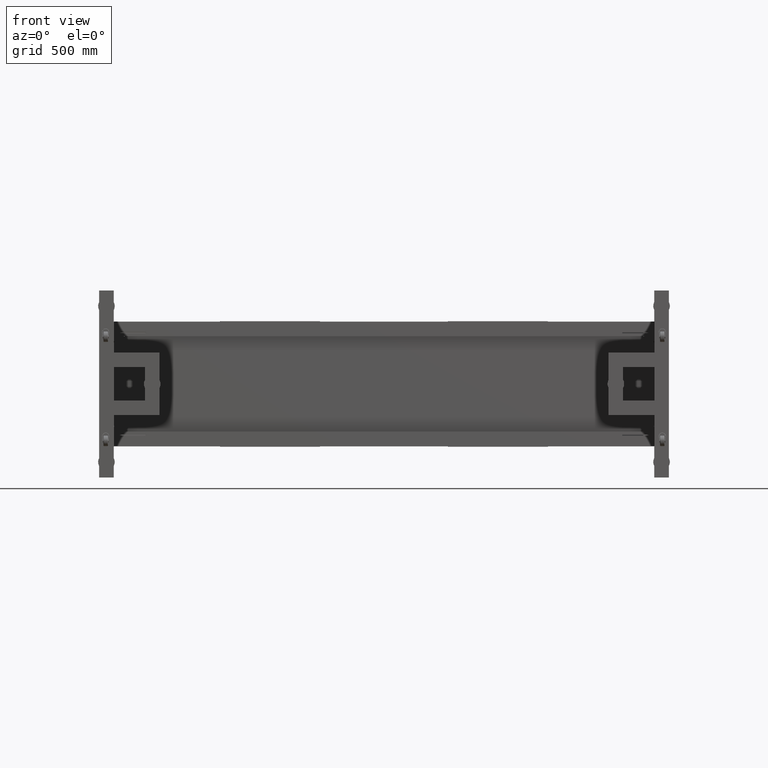
[diagram: clean part render]
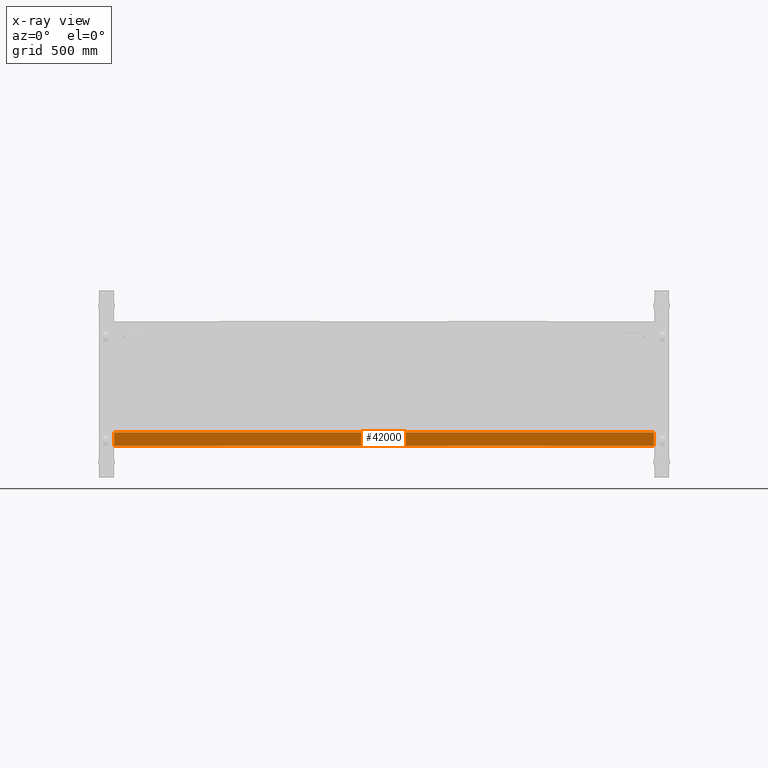
[diagram: x-ray — body ghosted, one internal face saturated and labeled with its STEP entity id]
A machine part, front view, then the same camera in x-ray: the body is ghosted and one INTERNAL B-rep face — a face not visible from any outside direction — is saturated and labeled: STEP entity #42000.
In plain terms, the highlighted planar face has unit normal (0, -1, -0).
Its self-contained STEP definition (entity closure, byte-faithful):
#6306 = LINE ( 'NONE', #54964, #43538 ) ;
#7121 = CARTESIAN_POINT ( 'NONE',  ( 1329.827512562815855, 554.4410804020126307, -232.4999999999999147 ) ) ;
#7389 = CARTESIAN_POINT ( 'NONE',  ( 1329.827512562815855, 554.4410804020126307, -232.4999999999999147 ) ) ;
#8698 = EDGE_CURVE ( 'NONE', #47258, #10629, #56404, .T. ) ;
#10378 = EDGE_CURVE ( 'NONE', #66376, #47258, #22095, .T. ) ;
#10629 = VERTEX_POINT ( 'NONE', #45358 ) ;
#11693 = ORIENTED_EDGE ( 'NONE', *, *, #13429, .F. ) ;
#13429 = EDGE_CURVE ( 'NONE', #71993, #10629, #6306, .T. ) ;
#21586 = EDGE_LOOP ( 'NONE', ( #11693, #70147, #75969, #66720 ) ) ;
#22095 = LINE ( 'NONE', #23278, #48660 ) ;
#23278 = CARTESIAN_POINT ( 'NONE',  ( 1329.827512562815855, 554.4410804020126307, -232.4999999999999147 ) ) ;
#24282 = PLANE ( 'NONE',  #50253 ) ;
#24659 = CARTESIAN_POINT ( 'NONE',  ( 1329.827512562815855, 554.4410804020126307, -232.4999999999999147 ) ) ;
#25468 = DIRECTION ( 'NONE',  ( 2.399989573374237993E-16, -1.000000000000000000, -2.999999999999999839E-15 ) ) ;
#30276 = LINE ( 'NONE', #24659, #36317 ) ;
#30473 = CARTESIAN_POINT ( 'NONE',  ( -1266.172487437185964, 554.4410804020122896, -232.4999999999999147 ) ) ;
#36317 = VECTOR ( 'NONE', #49210, 1000.000000000000000 ) ;
#36328 = CARTESIAN_POINT ( 'NONE',  ( -1266.172487437185964, 554.4410804020122896, -232.4999999999999147 ) ) ;
#36865 = DIRECTION ( 'NONE',  ( -1.000000000000000000, -2.399989573374237993E-16, 0.000000000000000000 ) ) ;
#42000 = ADVANCED_FACE ( 'NONE', ( #68533 ), #24282, .T. ) ;
#43538 = VECTOR ( 'NONE', #36865, 1000.000000000000000 ) ;
#45358 = CARTESIAN_POINT ( 'NONE',  ( -1266.172487437185964, 554.4410804020125170, -297.4999999999999432 ) ) ;
#47258 = VERTEX_POINT ( 'NONE', #30473 ) ;
#48660 = VECTOR ( 'NONE', #77610, 1000.000000000000000 ) ;
#49210 = DIRECTION ( 'NONE',  ( -7.199968720122713773E-31, 2.999999999999999839E-15, -1.000000000000000000 ) ) ;
#50026 = DIRECTION ( 'NONE',  ( -7.199968720122713773E-31, 2.999999999999999839E-15, -1.000000000000000000 ) ) ;
#50253 = AXIS2_PLACEMENT_3D ( 'NONE', #7389, #25468, #50026 ) ;
#54964 = CARTESIAN_POINT ( 'NONE',  ( 1329.827512562815855, 554.4410804020128580, -297.4999999999999432 ) ) ;
#56404 = LINE ( 'NONE', #36328, #67907 ) ;
#65604 = CARTESIAN_POINT ( 'NONE',  ( 1329.827512562815855, 554.4410804020128580, -297.4999999999999432 ) ) ;
#66376 = VERTEX_POINT ( 'NONE', #7121 ) ;
#66720 = ORIENTED_EDGE ( 'NONE', *, *, #8698, .T. ) ;
#67907 = VECTOR ( 'NONE', #74912, 1000.000000000000000 ) ;
#68533 = FACE_OUTER_BOUND ( 'NONE', #21586, .T. ) ;
#70147 = ORIENTED_EDGE ( 'NONE', *, *, #74871, .F. ) ;
#71993 = VERTEX_POINT ( 'NONE', #65604 ) ;
#74871 = EDGE_CURVE ( 'NONE', #66376, #71993, #30276, .T. ) ;
#74912 = DIRECTION ( 'NONE',  ( 0.000000000000000000, 2.999999999999999839E-15, -1.000000000000000000 ) ) ;
#75969 = ORIENTED_EDGE ( 'NONE', *, *, #10378, .T. ) ;
#77610 = DIRECTION ( 'NONE',  ( -1.000000000000000000, -2.399989573374237993E-16, 0.000000000000000000 ) ) ;